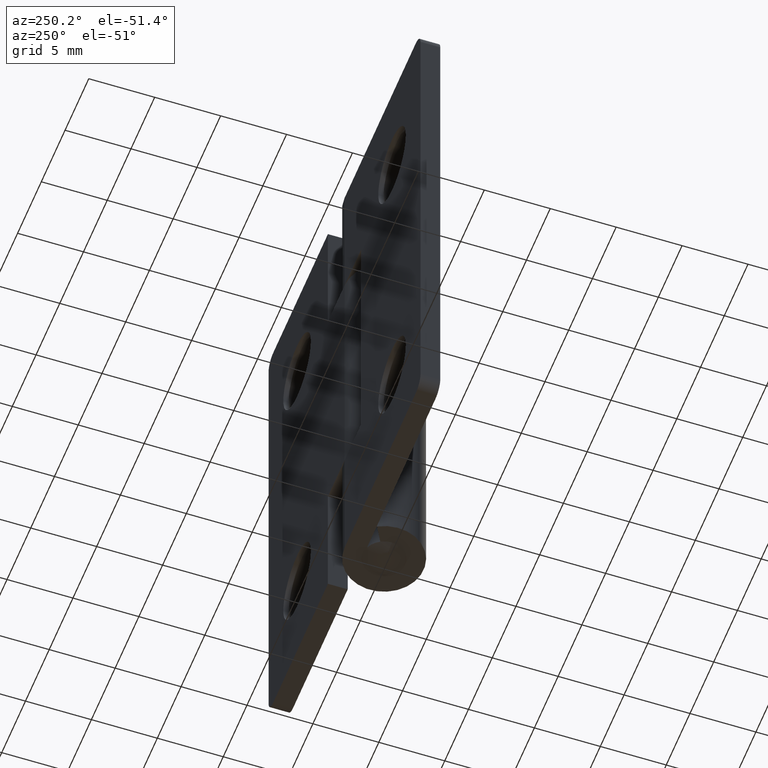
[diagram: clean part render]
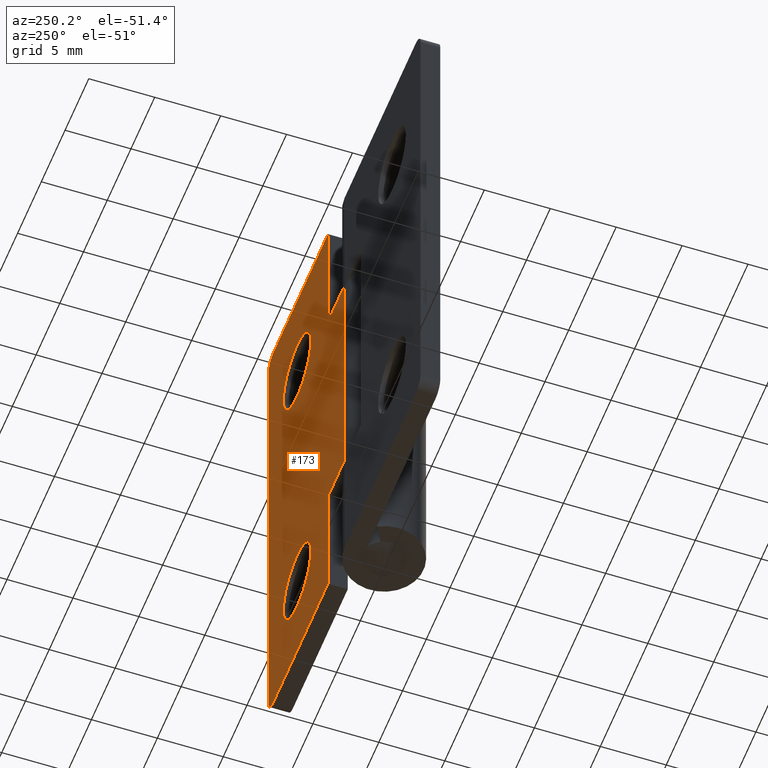
[diagram: same view with one face highlighted and labeled with its STEP entity id]
A machine part, auxiliary view. The second image highlights one B-rep face of the part: STEP entity #173.
In plain terms, the highlighted planar face has unit normal (-0, 1, 0).
Its self-contained STEP definition (entity closure, byte-faithful):
#173=ADVANCED_FACE('',(#448,#449,#450),#447,.T.);
#447=PLANE('',#904);
#448=FACE_OUTER_BOUND('',#905,.T.);
#449=FACE_BOUND('',#906,.T.);
#450=FACE_BOUND('',#907,.T.);
#901=CARTESIAN_POINT('',(7.60000000000E+00,1.13686837722E-14,-1.20000000000E+01));
#902=DIRECTION('',(-7.10542735760E-15,1.00000000000E+00,0.00000000000E+00));
#903=DIRECTION('',(-1.00000000000E+00,-7.10542735760E-15,0.00000000000E+00));
#904=AXIS2_PLACEMENT_3D('',#901,#902,#903);
#905=EDGE_LOOP('',(#1213,#1214,#1215,#1216,#1217,#1218,#1219,#1220,#1221,#1222));
#906=EDGE_LOOP('',(#1223,#1224,#1225));
#907=EDGE_LOOP('',(#1226,#1227,#1228));
#1213=ORIENTED_EDGE('',*,*,#1427,.T.);
#1214=ORIENTED_EDGE('',*,*,#1428,.T.);
#1215=ORIENTED_EDGE('',*,*,#1429,.F.);
#1216=ORIENTED_EDGE('',*,*,#1430,.T.);
#1217=ORIENTED_EDGE('',*,*,#1431,.T.);
#1218=ORIENTED_EDGE('',*,*,#1432,.F.);
#1219=ORIENTED_EDGE('',*,*,#1433,.T.);
#1220=ORIENTED_EDGE('',*,*,#1434,.T.);
#1221=ORIENTED_EDGE('',*,*,#1435,.T.);
#1222=ORIENTED_EDGE('',*,*,#1436,.T.);
#1223=ORIENTED_EDGE('',*,*,#1437,.F.);
#1224=ORIENTED_EDGE('',*,*,#1438,.F.);
#1225=ORIENTED_EDGE('',*,*,#1439,.F.);
#1226=ORIENTED_EDGE('',*,*,#1440,.F.);
#1227=ORIENTED_EDGE('',*,*,#1441,.F.);
#1228=ORIENTED_EDGE('',*,*,#1442,.F.);
#1427=EDGE_CURVE('',#1941,#1942,#1943,.T.);
#1428=EDGE_CURVE('',#1942,#1949,#1950,.T.);
#1429=EDGE_CURVE('',#1956,#1949,#1957,.T.);
#1430=EDGE_CURVE('',#1956,#1963,#1964,.T.);
#1431=EDGE_CURVE('',#1963,#1970,#1971,.T.);
#1432=EDGE_CURVE('',#1977,#1970,#1978,.T.);
#1433=EDGE_CURVE('',#1977,#1984,#1985,.T.);
#1434=EDGE_CURVE('',#1984,#1991,#1992,.T.);
#1435=EDGE_CURVE('',#1991,#1998,#1999,.T.);
#1436=EDGE_CURVE('',#1998,#1941,#2005,.T.);
#1437=EDGE_CURVE('',#2011,#2012,#2013,.T.);
#1438=EDGE_CURVE('',#2019,#2011,#2020,.T.);
#1439=EDGE_CURVE('',#2012,#2019,#2026,.T.);
#1440=EDGE_CURVE('',#2032,#2033,#2034,.T.);
#1441=EDGE_CURVE('',#2040,#2032,#2041,.T.);
#1442=EDGE_CURVE('',#2033,#2040,#2047,.T.);
#1941=VERTEX_POINT('',#2697);
#1942=VERTEX_POINT('',#2698);
#1943=LINE('',#2699,#2700);
#1949=VERTEX_POINT('',#2702);
#1950=CIRCLE('',#2706,1.00000000000E+00);
#1956=VERTEX_POINT('',#2707);
#1957=LINE('',#2708,#2709);
#1963=VERTEX_POINT('',#2711);
#1964=LINE('',#2712,#2713);
#1970=VERTEX_POINT('',#2715);
#1971=LINE('',#2716,#2717);
#1977=VERTEX_POINT('',#2719);
#1978=LINE('',#2720,#2721);
#1984=VERTEX_POINT('',#2723);
#1985=LINE('',#2724,#2725);
#1991=VERTEX_POINT('',#2727);
#1992=LINE('',#2728,#2729);
#1998=VERTEX_POINT('',#2731);
#1999=LINE('',#2732,#2733);
#2005=CIRCLE('',#2738,1.00000000000E+00);
#2011=VERTEX_POINT('',#2739);
#2012=VERTEX_POINT('',#2740);
#2013=CIRCLE('',#2744,2.90000000000E+00);
#2019=VERTEX_POINT('',#2745);
#2020=CIRCLE('',#2749,2.90000000000E+00);
#2026=CIRCLE('',#2753,2.90000000000E+00);
#2032=VERTEX_POINT('',#2754);
#2033=VERTEX_POINT('',#2755);
#2034=CIRCLE('',#2759,2.90000000000E+00);
#2040=VERTEX_POINT('',#2760);
#2041=CIRCLE('',#2764,2.90000000000E+00);
#2047=CIRCLE('',#2768,2.90000000000E+00);
#2697=CARTESIAN_POINT('',(6.00000000000E+00,0.00000000000E+00,3.10000000000E+01));
#2698=CARTESIAN_POINT('',(6.00000000000E+00,0.00000000000E+00,-7.00000000000E+00));
#2699=CARTESIAN_POINT('',(6.00000000000E+00,0.00000000000E+00,3.10000000000E+01));
#2700=VECTOR('',#2701,3.80000000000E+01);
#2701=DIRECTION('',(0.00000000000E+00,0.00000000000E+00,-1.00000000000E+00));
#2702=CARTESIAN_POINT('',(5.00000000000E+00,-7.10542735760E-15,-8.00000000000E+00));
#2703=CARTESIAN_POINT('',(5.00000000000E+00,-7.10542735760E-15,-7.00000000000E+00));
#2704=DIRECTION('',(-7.10542735760E-15,1.00000000000E+00,0.00000000000E+00));
#2705=DIRECTION('',(1.00000000000E+00,7.10542735760E-15,-0.00000000000E+00));
#2706=AXIS2_PLACEMENT_3D('',#2703,#2704,#2705);
#2707=CARTESIAN_POINT('',(-6.50000000000E+00,-8.88178419700E-14,-8.00000000000E+00));
#2708=CARTESIAN_POINT('',(-6.50000000000E+00,-8.88178419700E-14,-8.00000000000E+00));
#2709=VECTOR('',#2710,1.15000000000E+01);
#2710=DIRECTION('',(1.00000000000E+00,7.10542735760E-15,0.00000000000E+00));
#2711=CARTESIAN_POINT('',(-6.50000000000E+00,0.00000000000E+00,2.00000000000E+00));
#2712=CARTESIAN_POINT('',(-6.50000000000E+00,0.00000000000E+00,-8.00000000000E+00));
#2713=VECTOR('',#2714,1.00000000000E+01);
#2714=DIRECTION('',(0.00000000000E+00,0.00000000000E+00,1.00000000000E+00));
#2715=CARTESIAN_POINT('',(-1.00000000000E+01,0.00000000000E+00,2.00000000000E+00));
#2716=CARTESIAN_POINT('',(-6.50000000000E+00,0.00000000000E+00,2.00000000000E+00));
#2717=VECTOR('',#2718,3.50000000000E+00);
#2718=DIRECTION('',(-1.00000000000E+00,0.00000000000E+00,1.62409768174E-14));
#2719=CARTESIAN_POINT('',(-1.00000000000E+01,0.00000000000E+00,2.20000000000E+01));
#2720=CARTESIAN_POINT('',(-1.00000000000E+01,-1.13686837722E-13,2.20000000000E+01));
#2721=VECTOR('',#2722,2.00000000000E+01);
#2722=DIRECTION('',(0.00000000000E+00,0.00000000000E+00,-1.00000000000E+00));
#2723=CARTESIAN_POINT('',(-6.50000000000E+00,0.00000000000E+00,2.20000000000E+01));
#2724=CARTESIAN_POINT('',(-1.00000000000E+01,0.00000000000E+00,2.20000000000E+01));
#2725=VECTOR('',#2726,3.50000000000E+00);
#2726=DIRECTION('',(1.00000000000E+00,0.00000000000E+00,-1.62409768174E-14));
#2727=CARTESIAN_POINT('',(-6.50000000000E+00,0.00000000000E+00,3.20000000000E+01));
#2728=CARTESIAN_POINT('',(-6.50000000000E+00,0.00000000000E+00,2.20000000000E+01));
#2729=VECTOR('',#2730,1.00000000000E+01);
#2730=DIRECTION('',(0.00000000000E+00,0.00000000000E+00,1.00000000000E+00));
#2731=CARTESIAN_POINT('',(5.00000000000E+00,-7.10542735760E-15,3.20000000000E+01));
#2732=CARTESIAN_POINT('',(-6.50000000000E+00,-8.88178419700E-14,3.20000000000E+01));
#2733=VECTOR('',#2734,1.15000000000E+01);
#2734=DIRECTION('',(1.00000000000E+00,7.10542735760E-15,0.00000000000E+00));
#2735=CARTESIAN_POINT('',(5.00000000000E+00,-7.10542735760E-15,3.10000000000E+01));
#2736=DIRECTION('',(-7.10542735760E-15,1.00000000000E+00,0.00000000000E+00));
#2737=DIRECTION('',(1.00000000000E+00,7.10542735760E-15,-0.00000000000E+00));
#2738=AXIS2_PLACEMENT_3D('',#2735,#2736,#2737);
#2739=CARTESIAN_POINT('',(3.00964197317E-04,2.13847924046E-18,2.11000000156E+01));
#2740=CARTESIAN_POINT('',(-2.90000000000E+00,-2.06057393370E-14,2.40000000000E+01));
#2741=CARTESIAN_POINT('',(1.13686837722E-13,0.00000000000E+00,2.40000000000E+01));
#2742=DIRECTION('',(-7.10542735760E-15,1.00000000000E+00,-1.75162308041E-46));
#2743=DIRECTION('',(-1.00000000000E+00,-7.10542735760E-15,-1.22460635382E-16));
#2744=AXIS2_PLACEMENT_3D('',#2741,#2742,#2743);
#2745=CARTESIAN_POINT('',(-4.40306234975E-11,-3.13663071672E-25,2.69000000000E+01));
#2746=CARTESIAN_POINT('',(1.13686837722E-13,0.00000000000E+00,2.40000000000E+01));
#2747=DIRECTION('',(-7.10542735760E-15,1.00000000000E+00,-1.75162308041E-46));
#2748=DIRECTION('',(-1.00000000000E+00,-7.10542735760E-15,-1.22460635382E-16));
#2749=AXIS2_PLACEMENT_3D('',#2746,#2747,#2748);
#2750=CARTESIAN_POINT('',(1.13686837722E-13,0.00000000000E+00,2.40000000000E+01));
#2751=DIRECTION('',(-7.10542735760E-15,1.00000000000E+00,-1.75162308041E-46));
#2752=DIRECTION('',(-1.00000000000E+00,-7.10542735760E-15,-1.22460635382E-16));
#2753=AXIS2_PLACEMENT_3D('',#2750,#2751,#2752);
#2754=CARTESIAN_POINT('',(3.00964197317E-04,2.13847924046E-18,-2.89999998438E+00));
#2755=CARTESIAN_POINT('',(-2.90000000000E+00,-2.06057393370E-14,0.00000000000E+00));
#2756=CARTESIAN_POINT('',(1.13686837722E-13,0.00000000000E+00,0.00000000000E+00));
#2757=DIRECTION('',(-7.10542735760E-15,1.00000000000E+00,-1.75162308041E-46));
#2758=DIRECTION('',(-1.00000000000E+00,-7.10542735760E-15,-1.22460635382E-16));
#2759=AXIS2_PLACEMENT_3D('',#2756,#2757,#2758);
#2760=CARTESIAN_POINT('',(-4.40307616111E-11,-3.13665034384E-25,2.90000000000E+00));
#2761=CARTESIAN_POINT('',(1.13686837722E-13,0.00000000000E+00,0.00000000000E+00));
#2762=DIRECTION('',(-7.10542735760E-15,1.00000000000E+00,-1.75162308041E-46));
#2763=DIRECTION('',(-1.00000000000E+00,-7.10542735760E-15,-1.22460635382E-16));
#2764=AXIS2_PLACEMENT_3D('',#2761,#2762,#2763);
#2765=CARTESIAN_POINT('',(1.13686837722E-13,0.00000000000E+00,0.00000000000E+00));
#2766=DIRECTION('',(-7.10542735760E-15,1.00000000000E+00,-1.75162308041E-46));
#2767=DIRECTION('',(-1.00000000000E+00,-7.10542735760E-15,-1.22460635382E-16));
#2768=AXIS2_PLACEMENT_3D('',#2765,#2766,#2767);